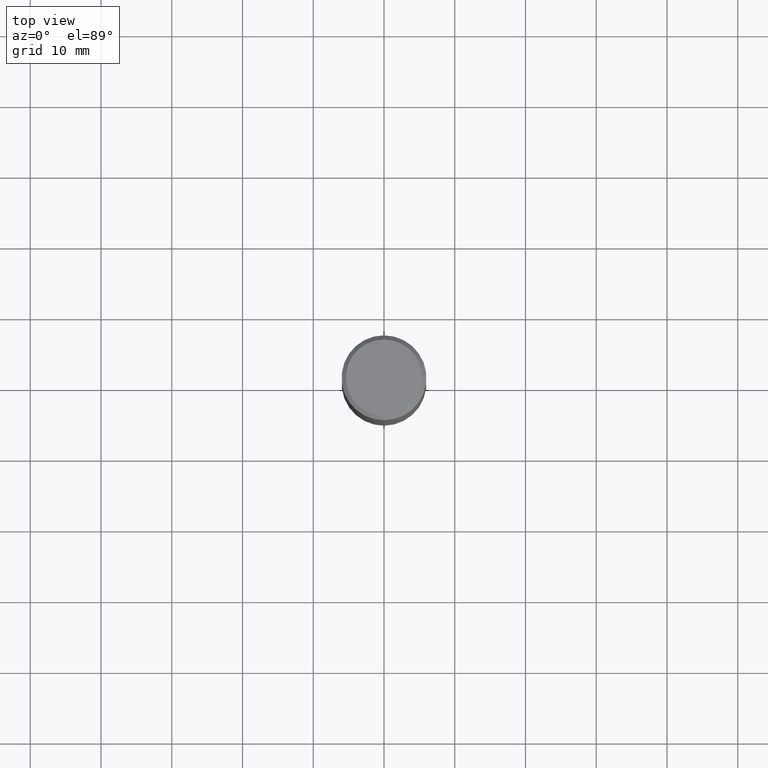
[diagram: clean part render]
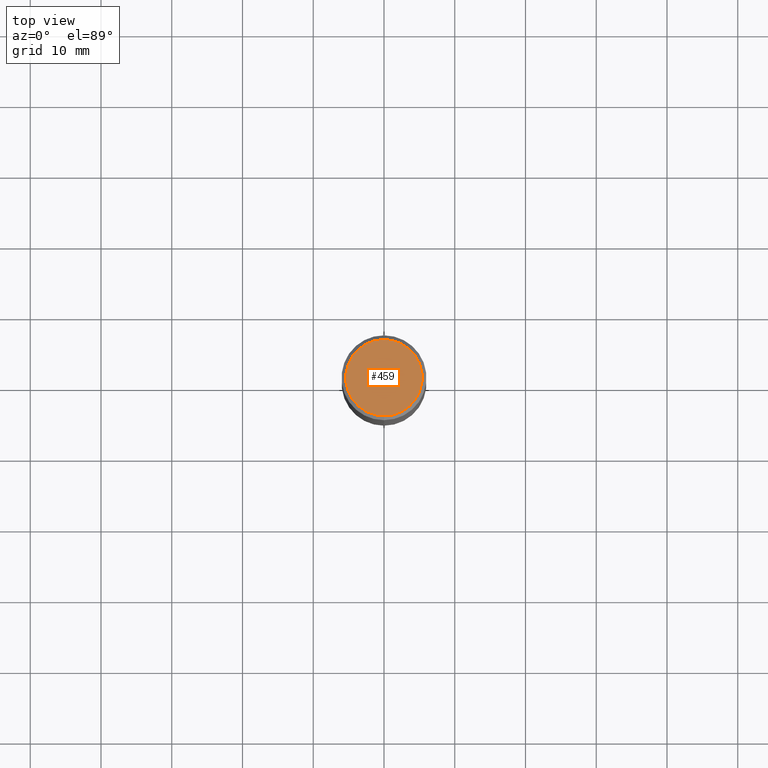
[diagram: same view with one face highlighted and labeled with its STEP entity id]
A machine part, top view. The second image highlights one B-rep face of the part: STEP entity #459.
In plain terms, the highlighted planar face has unit normal (-0, 0, 1).
Its self-contained STEP definition (entity closure, byte-faithful):
#373=VERTEX_POINT('',#897);
#459=ADVANCED_FACE('',(#987),#988,.T.);
#507=EDGE_CURVE('',#561,#373,#1039,.T.);
#561=VERTEX_POINT('',#1097);
#721=EDGE_CURVE('',#373,#561,#1276,.T.);
#897=CARTESIAN_POINT('',(0.0,5.4,0.0));
#987=FACE_OUTER_BOUND('',#3886,.T.);
#988=PLANE('',#3887);
#1039=CIRCLE('',#4123,5.4);
#1097=CARTESIAN_POINT('',(6.61287431064084E-016,-5.4,0.0));
#1276=CIRCLE('',#4852,5.4);
#3886=EDGE_LOOP('',(#5496,#5497));
#3887=AXIS2_PLACEMENT_3D('',#5498,#5499,#5500);
#4123=AXIS2_PLACEMENT_3D('',#5539,#5540,#5541);
#4852=AXIS2_PLACEMENT_3D('',#5873,#5874,#5875);
#5496=ORIENTED_EDGE('',*,*,#721,.F.);
#5497=ORIENTED_EDGE('',*,*,#507,.F.);
#5498=CARTESIAN_POINT('',(0.0,2.7,0.0));
#5499=DIRECTION('',(-0.0,0.0,1.0));
#5500=DIRECTION('',(0.0,-1.0,0.0));
#5539=CARTESIAN_POINT('',(0.0,0.0,0.0));
#5540=DIRECTION('',(0.0,0.0,-1.0));
#5541=DIRECTION('',(0.0,1.0,0.0));
#5873=CARTESIAN_POINT('',(0.0,0.0,0.0));
#5874=DIRECTION('',(0.0,0.0,-1.0));
#5875=DIRECTION('',(0.0,1.0,0.0));